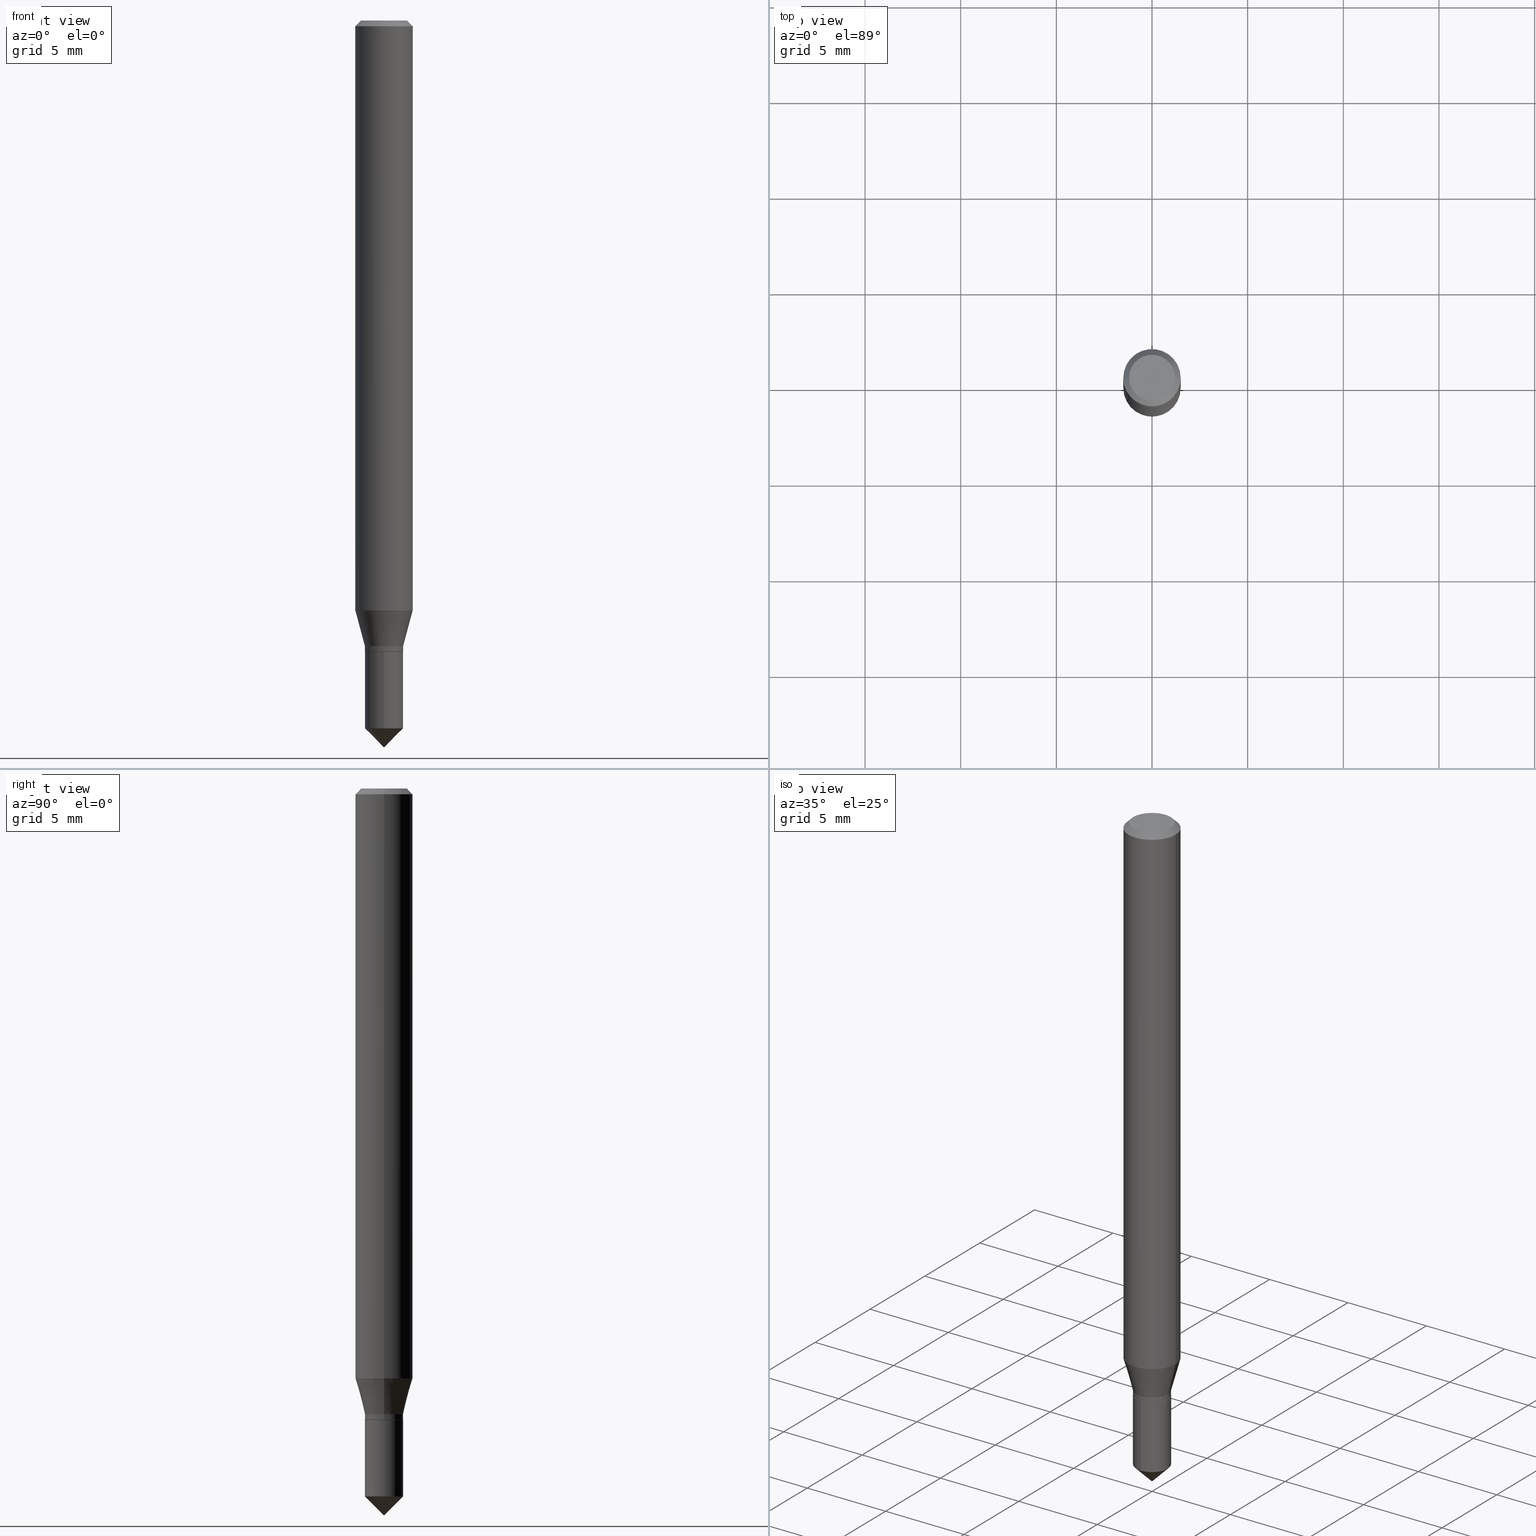
[diagram: canonical four-view strip — front | top / right | iso, engineering-drawing reading convention]
A machine part, canonical four-view strip (front | top / right | iso — engineering-drawing reading convention). The complete STEP part file that produces these views, byte-faithful:
ISO-10303-21;
HEADER;
FILE_DESCRIPTION (( 'STEP AP203' ),
    '1' );
FILE_NAME ('07038.STEP',
    '2024-04-23T19:22:19',
    ( '' ),
    ( '' ),
    'SwSTEP 2.0',
    'SolidWorks 2023',
    '' );
FILE_SCHEMA (( 'CONFIG_CONTROL_DESIGN' ));
ENDSEC;

DATA;
#1 = DIRECTION ( 'NONE',  ( 1.000000000000000000, -6.982962677686256455E-15, 0.000000000000000000 ) ) ;
#2 = ORIENTED_EDGE ( 'NONE', *, *, #373, .T. ) ;
#3 = ORIENTED_EDGE ( 'NONE', *, *, #354, .T. ) ;
#4 = DIRECTION ( 'NONE',  ( -0.2588190451025212391, 5.211531920934549464E-15, 0.9659258262890679791 ) ) ;
#5 = CIRCLE ( 'NONE', #279, 0.04724000000000000421 ) ;
#6 = FACE_OUTER_BOUND ( 'NONE', #302, .T. ) ;
#7 = ORIENTED_EDGE ( 'NONE', *, *, #117, .T. ) ;
#8 = FACE_OUTER_BOUND ( 'NONE', #393, .T. ) ;
#9 = LINE ( 'NONE', #272, #278 ) ;
#10 = DIRECTION ( 'NONE',  ( 1.000000000000000000, -6.982962677686266711E-15, 0.000000000000000000 ) ) ;
#11 = VECTOR ( 'NONE', #362, 39.37007874015748143 ) ;
#12 = COORDINATED_UNIVERSAL_TIME_OFFSET ( 5, 0, .BEHIND. ) ;
#13 = DIRECTION ( 'NONE',  ( -4.937700262164549620E-15, -0.7071067811865453523, 0.7071067811865496822 ) ) ;
#14 = APPROVAL ( #27, 'UNSPECIFIED' ) ;
#15 = ADVANCED_FACE ( 'NONE', ( #365 ), #463, .T. ) ;
#16 = PERSON_AND_ORGANIZATION ( #370, #138 ) ;
#17 = DIRECTION ( 'NONE',  ( -2.445468806185136597E-29, 3.491481338843145583E-15, 1.000000000000000000 ) ) ;
#18 = CARTESIAN_POINT ( 'NONE',  ( 0.000000000000000000, 0.000000000000000000, 0.000000000000000000 ) ) ;
#19 = DIRECTION ( 'NONE',  ( -2.438088387897960049E-29, 3.491481338843145188E-15, 1.000000000000000000 ) ) ;
#20 = FACE_OUTER_BOUND ( 'NONE', #405, .T. ) ;
#21 =( NAMED_UNIT ( * ) PLANE_ANGLE_UNIT ( ) SI_UNIT ( $, .RADIAN. ) );
#22 = DIRECTION ( 'NONE',  ( 1.000000000000000000, -6.982962677686266711E-15, 4.876176775795936353E-29 ) ) ;
#23 = DIRECTION ( 'NONE',  ( -0.7071067811865454633, 2.468850131082235761E-15, -0.7071067811865493491 ) ) ;
#24 = DATE_AND_TIME ( #256, #235 ) ;
#25 = CARTESIAN_POINT ( 'NONE',  ( 3.148296541082745256E-29, -4.494933075626666460E-15, -1.287400000000000100 ) ) ;
#26 = ORIENTED_EDGE ( 'NONE', *, *, #368, .T. ) ;
#27 = APPROVAL_STATUS ( 'not_yet_approved' ) ;
#28 = LINE ( 'NONE', #331, #400 ) ;
#29 = DIRECTION ( 'NONE',  ( 1.000000000000000000, -6.982962677686271444E-15, 0.000000000000000000 ) ) ;
#30 = CIRCLE ( 'NONE', #345, 0.03935000000000000303 ) ;
#31 = CIRCLE ( 'NONE', #265, 0.05905000000000015098 ) ;
#32 = CALENDAR_DATE ( 2024, 23, 4 ) ;
#33 = ORIENTED_EDGE ( 'NONE', *, *, #58, .F. ) ;
#34 = DIRECTION ( 'NONE',  ( 0.7071067811868192443, -2.468850131085102876E-15, 0.7071067811862759012 ) ) ;
#35 = EDGE_CURVE ( 'NONE', #381, #454, #289, .T. ) ;
#36 = EDGE_CURVE ( 'NONE', #44, #371, #191, .T. ) ;
#37 = DIRECTION ( 'NONE',  ( -2.445468806185136597E-29, 3.491481338843145583E-15, 1.000000000000000000 ) ) ;
#38 = VERTEX_POINT ( 'NONE', #109 ) ;
#39 = EDGE_CURVE ( 'NONE', #424, #83, #328, .T. ) ;
#40 = AXIS2_PLACEMENT_3D ( 'NONE', #277, #61, #353 ) ;
#41 = EDGE_LOOP ( 'NONE', ( #33, #81, #414, #459 ) ) ;
#42 = DIRECTION ( 'NONE',  ( 1.000000000000000000, -6.982962677686271444E-15, 0.000000000000000000 ) ) ;
#43 = CARTESIAN_POINT ( 'NONE',  ( 3.177153072995728197E-29, -4.536132555425013945E-15, -1.299199999999999688 ) ) ;
#44 = VERTEX_POINT ( 'NONE', #72 ) ;
#45 = CARTESIAN_POINT ( 'NONE',  ( -0.05905000000000007465, 4.195754854663396902E-16, -2.904631170795525395E-30 ) ) ;
#46 = PLANE ( 'NONE',  #325 ) ;
#47 = ORIENTED_EDGE ( 'NONE', *, *, #330, .T. ) ;
#48 = FACE_OUTER_BOUND ( 'NONE', #409, .T. ) ;
#49 = CC_DESIGN_APPROVAL ( #106, ( #387 ) ) ;
#50 = CARTESIAN_POINT ( 'NONE',  ( 3.177153072995728757E-29, -4.536132555425014733E-15, -1.299199999999999910 ) ) ;
#51 = ORIENTED_EDGE ( 'NONE', *, *, #426, .T. ) ;
#52 = CARTESIAN_POINT ( 'NONE',  ( 3.148296541082745256E-29, -4.494933075626666460E-15, -1.287400000000000100 ) ) ;
#53 = MECHANICAL_CONTEXT ( 'NONE', #74, 'mechanical' ) ;
#54 = CC_DESIGN_PERSON_AND_ORGANIZATION_ASSIGNMENT ( #16, #448, ( #148 ) ) ;
#55 = AXIS2_PLACEMENT_3D ( 'NONE', #389, #269, #427 ) ;
#56 = DIRECTION ( 'NONE',  ( -2.445468806185136597E-29, 3.491481338843145583E-15, 1.000000000000000000 ) ) ;
#57 = CIRCLE ( 'NONE', #471, 0.03935000000000000303 ) ;
#58 = EDGE_CURVE ( 'NONE', #196, #424, #286, .T. ) ;
#59 = PRODUCT ( '07038', '07038', '', ( #53 ) ) ;
#60 = DATE_AND_TIME ( #470, #333 ) ;
#61 = DIRECTION ( 'NONE',  ( -2.445468806185136597E-29, 3.491481338843145583E-15, 1.000000000000000000 ) ) ;
#62 = EDGE_CURVE ( 'NONE', #196, #79, #411, .T. ) ;
#63 = CARTESIAN_POINT ( 'NONE',  ( 9.556573727066734222E-29, 4.599560915279260677E-15, -1.299199999999999688 ) ) ;
#64 = CIRCLE ( 'NONE', #100, 0.03885000000000000259 ) ;
#65 = CARTESIAN_POINT ( 'NONE',  ( -0.03885000000000000259, -4.260086702582214659E-15, -1.299199999999999688 ) ) ;
#66 = EDGE_CURVE ( 'NONE', #159, #82, #356, .T. ) ;
#67 = DIRECTION ( 'NONE',  ( -2.456664372604500601E-29, 3.475448650518548198E-15, 1.000000000000000000 ) ) ;
#68 = ORIENTED_EDGE ( 'NONE', *, *, #150, .F. ) ;
#69 = APPROVAL_ROLE ( '' ) ;
#70 = DIRECTION ( 'NONE',  ( 1.000000000000000000, -6.982962677686269077E-15, 0.000000000000000000 ) ) ;
#71 = ADVANCED_FACE ( 'NONE', ( #402 ), #419, .T. ) ;
#72 = CARTESIAN_POINT ( 'NONE',  ( 0.05905000000000015098, -4.650578422464288085E-15, -1.213878599090892685 ) ) ;
#73 = APPROVAL_DATE_TIME ( #479, #106 ) ;
#74 = APPLICATION_CONTEXT ( 'configuration controlled 3d designs of mechanical parts and assemblies' ) ;
#75 = ADVANCED_FACE ( 'NONE', ( #20 ), #399, .T. ) ;
#76 = DIRECTION ( 'NONE',  ( -2.445468806185136597E-29, 3.491481338843145583E-15, 1.000000000000000000 ) ) ;
#77 = FACE_OUTER_BOUND ( 'NONE', #317, .T. ) ;
#78 = VECTOR ( 'NONE', #438, 39.37007874015748143 ) ;
#79 = VERTEX_POINT ( 'NONE', #218 ) ;
#80 = CC_DESIGN_APPROVAL ( #14, ( #401 ) ) ;
#81 = ORIENTED_EDGE ( 'NONE', *, *, #62, .T. ) ;
#82 = VERTEX_POINT ( 'NONE', #323 ) ;
#83 = VERTEX_POINT ( 'NONE', #481 ) ;
#84 = CARTESIAN_POINT ( 'NONE',  ( 0.05904999999999999832, -4.463468013801466955E-16, -0.01181000000000006350 ) ) ;
#85 = ORIENTED_EDGE ( 'NONE', *, *, #214, .T. ) ;
#86 = ORIENTED_EDGE ( 'NONE', *, *, #473, .F. ) ;
#87 = PLANE ( 'NONE',  #113 ) ;
#88 = VERTEX_POINT ( 'NONE', #444 ) ;
#89 = AXIS2_PLACEMENT_3D ( 'NONE', #133, #276, #303 ) ;
#90 = CARTESIAN_POINT ( 'NONE',  ( 0.05905000000000007465, -4.123439461173745750E-16, 2.879382386107504074E-30 ) ) ;
#91 = EDGE_CURVE ( 'NONE', #454, #88, #482, .T. ) ;
#92 = CYLINDRICAL_SURFACE ( 'NONE', #112, 0.05905000000000007465 ) ;
#93 = AXIS2_PLACEMENT_3D ( 'NONE', #238, #429, #467 ) ;
#94 = PLANE ( 'NONE',  #308 ) ;
#95 = ORIENTED_EDGE ( 'NONE', *, *, #134, .F. ) ;
#96 = DIRECTION ( 'NONE',  ( -2.456664372604500601E-29, 3.475448650518548198E-15, 1.000000000000000000 ) ) ;
#97 = DIRECTION ( 'NONE',  ( -2.445468806185136877E-29, 3.491481338843145188E-15, 1.000000000000000000 ) ) ;
#98 = CARTESIAN_POINT ( 'NONE',  ( -2.747795813669188758E-16, -0.03935000000000507536, -1.456749999999999767 ) ) ;
#99 = VECTOR ( 'NONE', #255, 39.37007874015748143 ) ;
#100 = AXIS2_PLACEMENT_3D ( 'NONE', #153, #446, #408 ) ;
#101 = DIRECTION ( 'NONE',  ( 1.000000000000000000, -6.982962677686256455E-15, 0.000000000000000000 ) ) ;
#102 = CLOSED_SHELL ( 'NONE', ( #202, #388, #15, #193, #178 ) ) ;
#103 = PERSON_AND_ORGANIZATION ( #370, #138 ) ;
#104 = ORIENTED_EDGE ( 'NONE', *, *, #91, .T. ) ;
#105 = COORDINATED_UNIVERSAL_TIME_OFFSET ( 5, 0, .BEHIND. ) ;
#106 = APPROVAL ( #324, 'UNSPECIFIED' ) ;
#107 = CARTESIAN_POINT ( 'NONE',  ( -9.305819949961722198E-28, 1.316082386335771911E-13, 37.87397874015748300 ) ) ;
#108 = ADVANCED_FACE ( 'NONE', ( #127 ), #92, .T. ) ;
#109 = CARTESIAN_POINT ( 'NONE',  ( 3.675415567853592762E-29, -5.199618726040799515E-15, -1.496099999999999985 ) ) ;
#110 = PERSON_AND_ORGANIZATION ( #370, #138 ) ;
#111 = CARTESIAN_POINT ( 'NONE',  ( 2.888098660104662014E-31, -4.123439461173777182E-17, -0.01181000000000006350 ) ) ;
#112 = AXIS2_PLACEMENT_3D ( 'NONE', #344, #237, #390 ) ;
#113 = AXIS2_PLACEMENT_3D ( 'NONE', #304, #462, #179 ) ;
#114 = CARTESIAN_POINT ( 'NONE',  ( 2.968502248572491582E-29, -4.238234476346912376E-15, -1.213878599090892685 ) ) ;
#115 = VERTEX_POINT ( 'NONE', #131 ) ;
#116 = DIRECTION ( 'NONE',  ( -2.445468806185136597E-29, 3.491481338843145583E-15, 1.000000000000000000 ) ) ;
#117 = EDGE_CURVE ( 'NONE', #82, #169, #222, .T. ) ;
#118 = EDGE_LOOP ( 'NONE', ( #397, #334, #384, #68 ) ) ;
#119 = EDGE_LOOP ( 'NONE', ( #283, #263, #151, #123 ) ) ;
#120 = CARTESIAN_POINT ( 'NONE',  ( -0.03935000000000000303, 2.795985665215994447E-16, -1.935600958015305291E-30 ) ) ;
#121 = ADVANCED_FACE ( 'NONE', ( #8 ), #185, .T. ) ;
#122 = LINE ( 'NONE', #84, #170 ) ;
#123 = ORIENTED_EDGE ( 'NONE', *, *, #483, .F. ) ;
#124 = CC_DESIGN_PERSON_AND_ORGANIZATION_ASSIGNMENT ( #329, #220, ( #401 ) ) ;
#125 = DIRECTION ( 'NONE',  ( 1.000000000000000000, -6.982962677686269077E-15, 0.000000000000000000 ) ) ;
#126 = ORIENTED_EDGE ( 'NONE', *, *, #36, .T. ) ;
#127 = FACE_OUTER_BOUND ( 'NONE', #215, .T. ) ;
#128 = CLOSED_SHELL ( 'NONE', ( #460, #466, #108, #310, #294, #75, #121, #287, #456, #261, #282, #71 ) ) ;
#129 = EDGE_LOOP ( 'NONE', ( #243, #165, #377 ) ) ;
#130 = CC_DESIGN_APPROVAL ( #198, ( #148 ) ) ;
#131 = CARTESIAN_POINT ( 'NONE',  ( 0.03935000000000000303, -4.769712656993620588E-15, -1.287400000000000100 ) ) ;
#132 = CC_DESIGN_PERSON_AND_ORGANIZATION_ASSIGNMENT ( #110, #403, ( #387 ) ) ;
#133 = CARTESIAN_POINT ( 'NONE',  ( 3.175930338592637077E-29, -4.534386814755593230E-15, -1.298699999999999966 ) ) ;
#134 = EDGE_CURVE ( 'NONE', #44, #169, #234, .T. ) ;
#135 = ORIENTED_EDGE ( 'NONE', *, *, #66, .F. ) ;
#136 = APPROVAL_ROLE ( '' ) ;
#137 = DIRECTION ( 'NONE',  ( -6.982962677686266711E-15, -1.000000000000000000, 6.942434545525446301E-15 ) ) ;
#138 = ORGANIZATION ( 'UNSPECIFIED', 'UNSPECIFIED', '' ) ;
#139 = ORIENTED_EDGE ( 'NONE', *, *, #299, .F. ) ;
#140 = FACE_OUTER_BOUND ( 'NONE', #268, .T. ) ;
#141 = DIRECTION ( 'NONE',  ( -6.982962677686266711E-15, -1.000000000000000000, 3.552713678800497774E-15 ) ) ;
#142 = CARTESIAN_POINT ( 'NONE',  ( 3.675670657724248735E-29, -5.199618726040799515E-15, -1.496099999999999985 ) ) ;
#143 = EDGE_CURVE ( 'NONE', #424, #228, #239, .T. ) ;
#144 = CARTESIAN_POINT ( 'NONE',  ( -0.05904999999999999832, 3.711095515056362547E-16, -0.01181000000000006350 ) ) ;
#145 = CALENDAR_DATE ( 2024, 23, 4 ) ;
#146 = AXIS2_PLACEMENT_3D ( 'NONE', #194, #319, #141 ) ;
#147 = CONICAL_SURFACE ( 'NONE', #186, 0.03885000000000000259, 0.7853981633978325272 ) ;
#148 = PRODUCT_DEFINITION ( 'UNKNOWN', '', #387, #355 ) ;
#149 = ORIENTED_EDGE ( 'NONE', *, *, #266, .T. ) ;
#150 = EDGE_CURVE ( 'NONE', #115, #44, #9, .T. ) ;
#151 = ORIENTED_EDGE ( 'NONE', *, *, #330, .F. ) ;
#152 = APPROVAL_ROLE ( '' ) ;
#153 = CARTESIAN_POINT ( 'NONE',  ( 3.177153072995728197E-29, -4.536132555425013945E-15, -1.299199999999999688 ) ) ;
#154 = DIRECTION ( 'NONE',  ( -2.456664372604500881E-29, 3.475448650518548198E-15, 1.000000000000000000 ) ) ;
#155 = AXIS2_PLACEMENT_3D ( 'NONE', #451, #116, #70 ) ;
#156 = ORIENTED_EDGE ( 'NONE', *, *, #490, .T. ) ;
#157 = EDGE_LOOP ( 'NONE', ( #236, #51, #416, #418 ) ) ;
#158 = DIRECTION ( 'NONE',  ( -2.445468806185136597E-29, 3.491481338843145583E-15, 1.000000000000000000 ) ) ;
#159 = VERTEX_POINT ( 'NONE', #267 ) ;
#160 = DIRECTION ( 'NONE',  ( -2.445468806185136597E-29, 3.491481338843145583E-15, 1.000000000000000000 ) ) ;
#161 = EDGE_CURVE ( 'NONE', #83, #371, #207, .T. ) ;
#162 = AXIS2_PLACEMENT_3D ( 'NONE', #257, #67, #364 ) ;
#163 = ORIENTED_EDGE ( 'NONE', *, *, #368, .F. ) ;
#164 = CARTESIAN_POINT ( 'NONE',  ( -0.03885000000000000259, -4.257437475408104247E-15, -1.299199999999999688 ) ) ;
#165 = ORIENTED_EDGE ( 'NONE', *, *, #296, .T. ) ;
#166 = EDGE_CURVE ( 'NONE', #115, #83, #30, .T. ) ;
#167 = DIRECTION ( 'NONE',  ( -2.456664372604500601E-29, 3.475448650518548198E-15, 1.000000000000000000 ) ) ;
#168 = CARTESIAN_POINT ( 'NONE',  ( 0.05904999999999999832, -4.535783407291118600E-16, -0.01181000000000006350 ) ) ;
#169 = VERTEX_POINT ( 'NONE', #168 ) ;
#170 = VECTOR ( 'NONE', #232, 39.37007874015748854 ) ;
#171 = DIRECTION ( 'NONE',  ( 2.456664372604500321E-29, -3.475448650518548198E-15, -1.000000000000000000 ) ) ;
#172 = VECTOR ( 'NONE', #4, 39.37007874015748854 ) ;
#173 = DIRECTION ( 'NONE',  ( 1.000000000000000000, -6.982962677686265922E-15, 4.876176775795935793E-29 ) ) ;
#174 =( GEOMETRIC_REPRESENTATION_CONTEXT ( 3 ) GLOBAL_UNCERTAINTY_ASSIGNED_CONTEXT ( ( #270 ) ) GLOBAL_UNIT_ASSIGNED_CONTEXT ( ( #435, #21, #398 ) ) REPRESENTATION_CONTEXT ( 'NONE', 'WORKASPACE' ) );
#175 = CARTESIAN_POINT ( 'NONE',  ( 0.000000000000000000, 0.000000000000000000, 0.000000000000000000 ) ) ;
#176 = AXIS2_PLACEMENT_3D ( 'NONE', #175, #56, #315 ) ;
#177 = CARTESIAN_POINT ( 'NONE',  ( 2.968502248572491582E-29, -4.238234476346912376E-15, -1.213878599090892685 ) ) ;
#178 = ADVANCED_FACE ( 'NONE', ( #48 ), #46, .F. ) ;
#179 = DIRECTION ( 'NONE',  ( -1.000000000000000000, 6.982962677686265922E-15, -4.876176775795935793E-29 ) ) ;
#180 = CARTESIAN_POINT ( 'NONE',  ( 0.000000000000000000, 0.000000000000000000, 0.000000000000000000 ) ) ;
#181 = ORIENTED_EDGE ( 'NONE', *, *, #35, .F. ) ;
#182 = DATE_AND_TIME ( #253, #314 ) ;
#183 = ORIENTED_EDGE ( 'NONE', *, *, #62, .F. ) ;
#184 =( LENGTH_UNIT ( ) NAMED_UNIT ( * ) SI_UNIT ( $, .METRE. ) );
#185 = CONICAL_SURFACE ( 'NONE', #349, 0.03935000000000000303, 0.2617993877991499629 ) ;
#186 = AXIS2_PLACEMENT_3D ( 'NONE', #443, #37, #367 ) ;
#187 = SECURITY_CLASSIFICATION_LEVEL ( 'unclassified' ) ;
#188 = CARTESIAN_POINT ( 'NONE',  ( 0.03885000000000000259, -4.807420655453125065E-15, -1.299199999999999688 ) ) ;
#189 = DIRECTION ( 'NONE',  ( -1.000000000000000000, 6.982962677686266711E-15, 0.000000000000000000 ) ) ;
#190 = LINE ( 'NONE', #188, #227 ) ;
#191 = CIRCLE ( 'NONE', #307, 0.05905000000000015098 ) ;
#192 = CIRCLE ( 'NONE', #89, 0.03935000000000000997 ) ;
#193 = ADVANCED_FACE ( 'NONE', ( #6 ), #204, .T. ) ;
#194 = CARTESIAN_POINT ( 'NONE',  ( -9.305819949961722198E-28, 1.316082386335771911E-13, 37.87397874015748300 ) ) ;
#195 = ORIENTED_EDGE ( 'NONE', *, *, #166, .F. ) ;
#196 = VERTEX_POINT ( 'NONE', #164 ) ;
#197 = DIRECTION ( 'NONE',  ( -6.982962677686266711E-15, -1.000000000000000000, 6.942434545525446301E-15 ) ) ;
#198 = APPROVAL ( #432, 'UNSPECIFIED' ) ;
#199 = ORIENTED_EDGE ( 'NONE', *, *, #341, .T. ) ;
#200 = DIRECTION ( 'NONE',  ( 6.982962677686265922E-15, 1.000000000000000000, -3.475448650518548198E-15 ) ) ;
#201 = AXIS2_PLACEMENT_3D ( 'NONE', #180, #478, #439 ) ;
#202 = ADVANCED_FACE ( 'NONE', ( #206 ), #347, .T. ) ;
#203 = CONICAL_SURFACE ( 'NONE', #301, 0.05904999999999999832, 0.7853981633974456145 ) ;
#204 = CYLINDRICAL_SURFACE ( 'NONE', #376, 0.03935000000000000303 ) ;
#205 = CC_DESIGN_DATE_AND_TIME_ASSIGNMENT ( #182, #249, ( #148 ) ) ;
#206 = FACE_OUTER_BOUND ( 'NONE', #119, .T. ) ;
#207 = LINE ( 'NONE', #275, #172 ) ;
#208 = AXIS2_PLACEMENT_3D ( 'NONE', #487, #244, #101 ) ;
#209 = AXIS2_PLACEMENT_3D ( 'NONE', #480, #351, #226 ) ;
#210 = CARTESIAN_POINT ( 'NONE',  ( 3.177153072995728757E-29, -4.536132555425014733E-15, -1.299199999999999910 ) ) ;
#211 = CARTESIAN_POINT ( 'NONE',  ( 0.000000000000000000, 0.000000000000000000, 0.000000000000000000 ) ) ;
#212 = CC_DESIGN_PERSON_AND_ORGANIZATION_ASSIGNMENT ( #407, #284, ( #387 ) ) ;
#213 = PRODUCT_DEFINITION_SHAPE ( 'NONE', 'NONE',  #148 ) ;
#214 = EDGE_CURVE ( 'NONE', #228, #424, #192, .T. ) ;
#215 = EDGE_LOOP ( 'NONE', ( #126, #335, #139, #95 ) ) ;
#216 = AXIS2_PLACEMENT_3D ( 'NONE', #210, #96, #137 ) ;
#217 = FACE_OUTER_BOUND ( 'NONE', #252, .T. ) ;
#218 = CARTESIAN_POINT ( 'NONE',  ( 0.03885000000000000259, -4.807420655453125065E-15, -1.299199999999999688 ) ) ;
#219 = EDGE_LOOP ( 'NONE', ( #3, #156 ) ) ;
#220 = PERSON_AND_ORGANIZATION_ROLE ( 'classification_officer' ) ;
#221 = FACE_OUTER_BOUND ( 'NONE', #406, .T. ) ;
#222 = CIRCLE ( 'NONE', #440, 0.05904999999999999832 ) ;
#223 = AXIS2_PLACEMENT_3D ( 'NONE', #111, #404, #189 ) ;
#224 = FACE_OUTER_BOUND ( 'NONE', #342, .T. ) ;
#225 = DIRECTION ( 'NONE',  ( 1.000000000000000000, -6.982962677686266711E-15, 4.876185090822587894E-29 ) ) ;
#226 = DIRECTION ( 'NONE',  ( 1.000000000000000000, -6.982962677686266711E-15, 4.876185090822587894E-29 ) ) ;
#227 = VECTOR ( 'NONE', #34, 39.37007874015748143 ) ;
#228 = VERTEX_POINT ( 'NONE', #430 ) ;
#229 = CC_DESIGN_PERSON_AND_ORGANIZATION_ASSIGNMENT ( #311, #240, ( #59 ) ) ;
#230 = EDGE_CURVE ( 'NONE', #371, #82, #231, .T. ) ;
#231 = LINE ( 'NONE', #45, #392 ) ;
#232 = DIRECTION ( 'NONE',  ( 0.7071067811865454633, -7.319954787623246579E-15, -0.7071067811865493491 ) ) ;
#233 = ORIENTED_EDGE ( 'NONE', *, *, #58, .T. ) ;
#234 = LINE ( 'NONE', #90, #264 ) ;
#235 = LOCAL_TIME ( 15, 22, 19.00000000000000000, #291 ) ;
#236 = ORIENTED_EDGE ( 'NONE', *, *, #230, .F. ) ;
#237 = DIRECTION ( 'NONE',  ( -2.445468806185136597E-29, 3.491481338843145583E-15, 1.000000000000000000 ) ) ;
#238 = CARTESIAN_POINT ( 'NONE',  ( 3.177153072995728757E-29, -4.536132555425014733E-15, -1.299199999999999910 ) ) ;
#239 = CIRCLE ( 'NONE', #55, 0.03935000000000000997 ) ;
#240 = PERSON_AND_ORGANIZATION_ROLE ( 'design_owner' ) ;
#241 = CIRCLE ( 'NONE', #216, 0.03935000000000000303 ) ;
#242 = DIRECTION ( 'NONE',  ( -2.445468806185136877E-29, 3.491481338843145188E-15, 1.000000000000000000 ) ) ;
#243 = ORIENTED_EDGE ( 'NONE', *, *, #266, .F. ) ;
#244 = DIRECTION ( 'NONE',  ( -2.445468806185136597E-29, 3.491481338843145583E-15, 1.000000000000000000 ) ) ;
#245 = AXIS2_PLACEMENT_3D ( 'NONE', #380, #306, #197 ) ;
#246 = CIRCLE ( 'NONE', #209, 0.04724000000000000421 ) ;
#247 = LINE ( 'NONE', #285, #326 ) ;
#248 = ORIENTED_EDGE ( 'NONE', *, *, #299, .T. ) ;
#249 = DATE_TIME_ROLE ( 'creation_date' ) ;
#250 = EDGE_CURVE ( 'NONE', #305, #169, #122, .T. ) ;
#251 = DIRECTION ( 'NONE',  ( -2.445468806185136597E-29, 3.491481338843145583E-15, 1.000000000000000000 ) ) ;
#252 = EDGE_LOOP ( 'NONE', ( #85, #320, #195, #338 ) ) ;
#253 = CALENDAR_DATE ( 2024, 23, 4 ) ;
#254 = DIRECTION ( 'NONE',  ( -6.982962677686266711E-15, -1.000000000000000000, 3.552713678800497774E-15 ) ) ;
#255 = DIRECTION ( 'NONE',  ( -0.7071067811868192443, 7.493145998871337081E-15, 0.7071067811862759012 ) ) ;
#256 = CALENDAR_DATE ( 2024, 23, 4 ) ;
#257 = CARTESIAN_POINT ( 'NONE',  ( 3.564200544899568706E-29, -5.083689490314212442E-15, -1.456749999999999989 ) ) ;
#258 = VECTOR ( 'NONE', #97, 39.37007874015748143 ) ;
#259 = ORIENTED_EDGE ( 'NONE', *, *, #250, .F. ) ;
#260 = FACE_OUTER_BOUND ( 'NONE', #129, .T. ) ;
#261 = ADVANCED_FACE ( 'NONE', ( #425 ), #87, .F. ) ;
#262 = CARTESIAN_POINT ( 'NONE',  ( 2.795985665216350420E-16, 0.03934999999999547193, -1.299200000000000133 ) ) ;
#263 = ORIENTED_EDGE ( 'NONE', *, *, #35, .T. ) ;
#264 = VECTOR ( 'NONE', #340, 39.37007874015748143 ) ;
#265 = AXIS2_PLACEMENT_3D ( 'NONE', #114, #158, #42 ) ;
#266 = EDGE_CURVE ( 'NONE', #38, #346, #247, .T. ) ;
#267 = CARTESIAN_POINT ( 'NONE',  ( -0.04724000000000000421, 3.504923541997677355E-16, -3.380025165670481712E-19 ) ) ;
#268 = EDGE_LOOP ( 'NONE', ( #163, #183 ) ) ;
#269 = DIRECTION ( 'NONE',  ( -2.445468806185136597E-29, 3.491481338843145583E-15, 1.000000000000000000 ) ) ;
#270 = UNCERTAINTY_MEASURE_WITH_UNIT (LENGTH_MEASURE( 1.000000000000000082E-05 ), #435, 'distance_accuracy_value', 'NONE');
#271 = ORIENTED_EDGE ( 'NONE', *, *, #426, .F. ) ;
#272 = CARTESIAN_POINT ( 'NONE',  ( 0.03935000000000000303, -4.769712656993620588E-15, -1.287400000000000100 ) ) ;
#273 = CIRCLE ( 'NONE', #162, 0.03935000000000000303 ) ;
#274 = ORIENTED_EDGE ( 'NONE', *, *, #150, .T. ) ;
#275 = CARTESIAN_POINT ( 'NONE',  ( -0.03935000000000000303, -4.215334509105066276E-15, -1.287400000000000100 ) ) ;
#276 = DIRECTION ( 'NONE',  ( -2.445468806185136597E-29, 3.491481338843145583E-15, 1.000000000000000000 ) ) ;
#277 = CARTESIAN_POINT ( 'NONE',  ( 2.888098660104662014E-31, -4.123439461173777182E-17, -0.01181000000000006350 ) ) ;
#278 = VECTOR ( 'NONE', #382, 39.37007874015748854 ) ;
#279 = AXIS2_PLACEMENT_3D ( 'NONE', #489, #76, #225 ) ;
#280 = CARTESIAN_POINT ( 'NONE',  ( 0.03935000000000000303, -2.747795813669546211E-16, 1.918775561275701074E-30 ) ) ;
#281 = LINE ( 'NONE', #142, #11 ) ;
#282 = ADVANCED_FACE ( 'NONE', ( #140 ), #94, .F. ) ;
#283 = ORIENTED_EDGE ( 'NONE', *, *, #379, .T. ) ;
#284 = PERSON_AND_ORGANIZATION_ROLE ( 'creator' ) ;
#285 = CARTESIAN_POINT ( 'NONE',  ( 3.646325008069517362E-29, -5.241278063383433293E-15, -1.496099999999999985 ) ) ;
#286 = LINE ( 'NONE', #65, #99 ) ;
#287 = ADVANCED_FACE ( 'NONE', ( #359 ), #318, .T. ) ;
#288 = LENGTH_MEASURE_WITH_UNIT ( LENGTH_MEASURE( 0.02539999999999999897 ), #184 );
#289 = LINE ( 'NONE', #474, #78 ) ;
#290 = ORIENTED_EDGE ( 'NONE', *, *, #214, .F. ) ;
#291 = COORDINATED_UNIVERSAL_TIME_OFFSET ( 5, 0, .BEHIND. ) ;
#292 = DIRECTION ( 'NONE',  ( -2.456664372604500601E-29, 3.475448650518548198E-15, 1.000000000000000000 ) ) ;
#293 = LOCAL_TIME ( 15, 22, 19.00000000000000000, #485 ) ;
#294 = ADVANCED_FACE ( 'NONE', ( #217 ), #477, .T. ) ;
#295 = CARTESIAN_POINT ( 'NONE',  ( -0.05905000000000015098, -3.818658990880572095E-15, -1.213878599090892685 ) ) ;
#296 = EDGE_CURVE ( 'NONE', #38, #381, #281, .T. ) ;
#297 = ORIENTED_EDGE ( 'NONE', *, *, #296, .F. ) ;
#298 = ORIENTED_EDGE ( 'NONE', *, *, #161, .F. ) ;
#299 = EDGE_CURVE ( 'NONE', #169, #82, #428, .T. ) ;
#300 = DIRECTION ( 'NONE',  ( -6.982962677686266711E-15, -1.000000000000000000, 6.942434545525446301E-15 ) ) ;
#301 = AXIS2_PLACEMENT_3D ( 'NONE', #417, #372, #415 ) ;
#302 = EDGE_LOOP ( 'NONE', ( #181, #363, #343, #431 ) ) ;
#303 = DIRECTION ( 'NONE',  ( 1.000000000000000000, -6.982962677686268288E-15, 0.000000000000000000 ) ) ;
#304 = CARTESIAN_POINT ( 'NONE',  ( 4.132873053354867254E-48, -5.900647395337818946E-34, -1.690012582823346072E-19 ) ) ;
#305 = VERTEX_POINT ( 'NONE', #312 ) ;
#306 = DIRECTION ( 'NONE',  ( -2.456664372604500601E-29, 3.475448650518548198E-15, 1.000000000000000000 ) ) ;
#307 = AXIS2_PLACEMENT_3D ( 'NONE', #177, #251, #29 ) ;
#308 = AXIS2_PLACEMENT_3D ( 'NONE', #63, #19, #173 ) ;
#309 = CARTESIAN_POINT ( 'NONE',  ( 2.888098660104662014E-31, -4.123439461173777182E-17, -0.01181000000000006350 ) ) ;
#310 = ADVANCED_FACE ( 'NONE', ( #436 ), #457, .T. ) ;
#311 = PERSON_AND_ORGANIZATION ( #370, #138 ) ;
#312 = CARTESIAN_POINT ( 'NONE',  ( 0.04724000000000000421, -3.852183633974369345E-16, -3.380025165621689721E-19 ) ) ;
#313 = DIRECTION ( 'NONE',  ( 1.000000000000000000, 0.000000000000000000, 0.000000000000000000 ) ) ;
#314 = LOCAL_TIME ( 15, 22, 19.00000000000000000, #105 ) ;
#315 = DIRECTION ( 'NONE',  ( 1.000000000000000000, -6.982962677686266711E-15, 4.876176775795936353E-29 ) ) ;
#316 = ORIENTED_EDGE ( 'NONE', *, *, #490, .F. ) ;
#317 = EDGE_LOOP ( 'NONE', ( #316, #339, #248, #135 ) ) ;
#318 = CYLINDRICAL_SURFACE ( 'NONE', #420, 0.05905000000000007465 ) ;
#319 = DIRECTION ( 'NONE',  ( -2.456664372604500601E-29, 3.475448650518548198E-15, 1.000000000000000000 ) ) ;
#320 = ORIENTED_EDGE ( 'NONE', *, *, #39, .T. ) ;
#321 = SHAPE_DEFINITION_REPRESENTATION ( #213, #361 ) ;
#322 = DIRECTION ( 'NONE',  ( 1.000000000000000000, -6.982962677686269077E-15, 0.000000000000000000 ) ) ;
#323 = CARTESIAN_POINT ( 'NONE',  ( -0.05904999999999999832, -1.720158950012984376E-15, -0.01181000000000006350 ) ) ;
#324 = APPROVAL_STATUS ( 'not_yet_approved' ) ;
#325 = AXIS2_PLACEMENT_3D ( 'NONE', #464, #171, #200 ) ;
#326 = VECTOR ( 'NONE', #13, 39.37007874015748143 ) ;
#327 = LOCAL_TIME ( 15, 22, 19.00000000000000000, #366 ) ;
#328 = LINE ( 'NONE', #120, #258 ) ;
#329 = PERSON_AND_ORGANIZATION ( #370, #138 ) ;
#330 = EDGE_CURVE ( 'NONE', #88, #454, #241, .T. ) ;
#331 = CARTESIAN_POINT ( 'NONE',  ( -2.747795813669228201E-16, -0.03935000000000453413, -1.299199999999999688 ) ) ;
#332 = CARTESIAN_POINT ( 'NONE',  ( 3.564200544899568706E-29, -5.083689490314212442E-15, -1.456749999999999989 ) ) ;
#333 = LOCAL_TIME ( 15, 22, 19.00000000000000000, #12 ) ;
#334 = ORIENTED_EDGE ( 'NONE', *, *, #161, .T. ) ;
#335 = ORIENTED_EDGE ( 'NONE', *, *, #230, .T. ) ;
#336 = DIRECTION ( 'NONE',  ( -6.982962677686266711E-15, -1.000000000000000000, 6.942434545525446301E-15 ) ) ;
#337 = DIRECTION ( 'NONE',  ( -2.445468806185136597E-29, 3.491481338843145583E-15, 1.000000000000000000 ) ) ;
#338 = ORIENTED_EDGE ( 'NONE', *, *, #341, .F. ) ;
#339 = ORIENTED_EDGE ( 'NONE', *, *, #250, .T. ) ;
#340 = DIRECTION ( 'NONE',  ( -2.445468806185136877E-29, 3.491481338843145188E-15, 1.000000000000000000 ) ) ;
#341 = EDGE_CURVE ( 'NONE', #228, #115, #469, .T. ) ;
#342 = EDGE_LOOP ( 'NONE', ( #26, #233, #290, #378 ) ) ;
#343 = ORIENTED_EDGE ( 'NONE', *, *, #483, .T. ) ;
#344 = CARTESIAN_POINT ( 'NONE',  ( 0.000000000000000000, 0.000000000000000000, 0.000000000000000000 ) ) ;
#345 = AXIS2_PLACEMENT_3D ( 'NONE', #348, #423, #385 ) ;
#346 = VERTEX_POINT ( 'NONE', #98 ) ;
#347 = CYLINDRICAL_SURFACE ( 'NONE', #93, 0.03935000000000000303 ) ;
#348 = CARTESIAN_POINT ( 'NONE',  ( 3.148296541082745256E-29, -4.494933075626666460E-15, -1.287400000000000100 ) ) ;
#349 = AXIS2_PLACEMENT_3D ( 'NONE', #52, #461, #125 ) ;
#350 = AXIS2_PLACEMENT_3D ( 'NONE', #107, #292, #254 ) ;
#351 = DIRECTION ( 'NONE',  ( -2.445468806185136597E-29, 3.491481338843145583E-15, 1.000000000000000000 ) ) ;
#352 = APPROVAL_DATE_TIME ( #60, #198 ) ;
#353 = DIRECTION ( 'NONE',  ( 1.000000000000000000, -6.982962677686266711E-15, 0.000000000000000000 ) ) ;
#354 = EDGE_CURVE ( 'NONE', #159, #305, #246, .T. ) ;
#355 = DESIGN_CONTEXT ( 'detailed design', #374, 'design' ) ;
#356 = LINE ( 'NONE', #144, #433 ) ;
#357 = AXIS2_PLACEMENT_3D ( 'NONE', #25, #17, #322 ) ;
#358 = PERSON_AND_ORGANIZATION ( #370, #138 ) ;
#359 = FACE_OUTER_BOUND ( 'NONE', #157, .T. ) ;
#360 = EDGE_LOOP ( 'NONE', ( #297, #149, #86 ) ) ;
#361 = ADVANCED_BREP_SHAPE_REPRESENTATION ( '07038', ( #455, #449, #386 ), #174 ) ;
#362 = DIRECTION ( 'NONE',  ( 5.024295867788063967E-15, 0.7071067811865502373, 0.7071067811865447972 ) ) ;
#363 = ORIENTED_EDGE ( 'NONE', *, *, #473, .T. ) ;
#364 = DIRECTION ( 'NONE',  ( -6.982962677686266711E-15, -1.000000000000000000, 6.942434545525446301E-15 ) ) ;
#365 = FACE_OUTER_BOUND ( 'NONE', #360, .T. ) ;
#366 = COORDINATED_UNIVERSAL_TIME_OFFSET ( 5, 0, .BEHIND. ) ;
#367 = DIRECTION ( 'NONE',  ( 1.000000000000000000, -6.982962677686256455E-15, 0.000000000000000000 ) ) ;
#368 = EDGE_CURVE ( 'NONE', #79, #196, #64, .T. ) ;
#369 = CARTESIAN_POINT ( 'NONE',  ( 2.795985665216350420E-16, 0.03934999999999491682, -1.456750000000000211 ) ) ;
#370 = PERSON ( 'UNSPECIFIED', 'UNSPECIFIED', 'UNSPECIFIED', ('UNSPECIFIED'), ('UNSPECIFIED'), ('UNSPECIFIED') ) ;
#371 = VERTEX_POINT ( 'NONE', #295 ) ;
#372 = DIRECTION ( 'NONE',  ( 2.445468806185136597E-29, -3.491481338843145583E-15, -1.000000000000000000 ) ) ;
#373 = EDGE_CURVE ( 'NONE', #83, #115, #375, .T. ) ;
#374 = APPLICATION_CONTEXT ( 'configuration controlled 3d designs of mechanical parts and assemblies' ) ;
#375 = CIRCLE ( 'NONE', #155, 0.03935000000000000303 ) ;
#376 = AXIS2_PLACEMENT_3D ( 'NONE', #50, #167, #300 ) ;
#377 = ORIENTED_EDGE ( 'NONE', *, *, #379, .F. ) ;
#378 = ORIENTED_EDGE ( 'NONE', *, *, #437, .F. ) ;
#379 = EDGE_CURVE ( 'NONE', #346, #381, #57, .T. ) ;
#380 = CARTESIAN_POINT ( 'NONE',  ( 3.177153072995728757E-29, -4.536132555425014733E-15, -1.299199999999999910 ) ) ;
#381 = VERTEX_POINT ( 'NONE', #369 ) ;
#382 = DIRECTION ( 'NONE',  ( 0.2588190451025212391, 1.565188264969622362E-15, 0.9659258262890679791 ) ) ;
#383 = ORIENTED_EDGE ( 'NONE', *, *, #373, .F. ) ;
#384 = ORIENTED_EDGE ( 'NONE', *, *, #36, .F. ) ;
#385 = DIRECTION ( 'NONE',  ( 1.000000000000000000, -6.982962677686269077E-15, 0.000000000000000000 ) ) ;
#386 = AXIS2_PLACEMENT_3D ( 'NONE', #18, #394, #313 ) ;
#387 = PRODUCT_DEFINITION_FORMATION_WITH_SPECIFIED_SOURCE ( 'ANY', '', #59, .NOT_KNOWN. ) ;
#388 = ADVANCED_FACE ( 'NONE', ( #260 ), #484, .T. ) ;
#389 = CARTESIAN_POINT ( 'NONE',  ( 3.175930338592637077E-29, -4.534386814755593230E-15, -1.298699999999999966 ) ) ;
#390 = DIRECTION ( 'NONE',  ( 1.000000000000000000, -6.982962677686266711E-15, 4.876176775795936353E-29 ) ) ;
#391 = ORIENTED_EDGE ( 'NONE', *, *, #354, .F. ) ;
#392 = VECTOR ( 'NONE', #458, 39.37007874015748143 ) ;
#393 = EDGE_LOOP ( 'NONE', ( #298, #2, #274, #271 ) ) ;
#394 = DIRECTION ( 'NONE',  ( 0.000000000000000000, 0.000000000000000000, 1.000000000000000000 ) ) ;
#395 = DIRECTION ( 'NONE',  ( -2.445468806185136597E-29, 3.491481338843145583E-15, 1.000000000000000000 ) ) ;
#396 = CC_DESIGN_DATE_AND_TIME_ASSIGNMENT ( #441, #410, ( #401 ) ) ;
#397 = ORIENTED_EDGE ( 'NONE', *, *, #166, .T. ) ;
#398 =( NAMED_UNIT ( * ) SI_UNIT ( $, .STERADIAN. ) SOLID_ANGLE_UNIT ( ) );
#399 = CYLINDRICAL_SURFACE ( 'NONE', #201, 0.03935000000000000303 ) ;
#400 = VECTOR ( 'NONE', #154, 39.37007874015748143 ) ;
#401 = SECURITY_CLASSIFICATION ( '', '', #187 ) ;
#402 = FACE_OUTER_BOUND ( 'NONE', #41, .T. ) ;
#403 = PERSON_AND_ORGANIZATION_ROLE ( 'design_supplier' ) ;
#404 = DIRECTION ( 'NONE',  ( 2.445468806185136597E-29, -3.491481338843145583E-15, -1.000000000000000000 ) ) ;
#405 = EDGE_LOOP ( 'NONE', ( #447, #468, #199, #383 ) ) ;
#406 = EDGE_LOOP ( 'NONE', ( #259, #391, #453, #7 ) ) ;
#407 = PERSON_AND_ORGANIZATION ( #370, #138 ) ;
#408 = DIRECTION ( 'NONE',  ( 1.000000000000000000, -6.982962677686256455E-15, 0.000000000000000000 ) ) ;
#409 = EDGE_LOOP ( 'NONE', ( #47, #104 ) ) ;
#410 = DATE_TIME_ROLE ( 'classification_date' ) ;
#411 = CIRCLE ( 'NONE', #208, 0.03885000000000000259 ) ;
#412 = APPROVAL_PERSON_ORGANIZATION ( #358, #198, #136 ) ;
#413 = CARTESIAN_POINT ( 'NONE',  ( -0.03935000000000000997, -4.235061378669530450E-15, -1.298699999999999966 ) ) ;
#414 = ORIENTED_EDGE ( 'NONE', *, *, #437, .T. ) ;
#415 = DIRECTION ( 'NONE',  ( -1.000000000000000000, 6.982962677686266711E-15, 0.000000000000000000 ) ) ;
#416 = ORIENTED_EDGE ( 'NONE', *, *, #134, .T. ) ;
#417 = CARTESIAN_POINT ( 'NONE',  ( 2.888098660104662014E-31, -4.123439461173777182E-17, -0.01181000000000006350 ) ) ;
#418 = ORIENTED_EDGE ( 'NONE', *, *, #117, .F. ) ;
#419 = CONICAL_SURFACE ( 'NONE', #442, 0.03885000000000000259, 0.7853981633978325272 ) ;
#420 = AXIS2_PLACEMENT_3D ( 'NONE', #211, #395, #22 ) ;
#421 = CC_DESIGN_SECURITY_CLASSIFICATION ( #401, ( #387 ) ) ;
#422 = PRODUCT_RELATED_PRODUCT_CATEGORY ( 'detail', '', ( #59 ) ) ;
#423 = DIRECTION ( 'NONE',  ( -2.445468806185136597E-29, 3.491481338843145583E-15, 1.000000000000000000 ) ) ;
#424 = VERTEX_POINT ( 'NONE', #413 ) ;
#425 = FACE_OUTER_BOUND ( 'NONE', #219, .T. ) ;
#426 = EDGE_CURVE ( 'NONE', #371, #44, #31, .T. ) ;
#427 = DIRECTION ( 'NONE',  ( 1.000000000000000000, -6.982962677686268288E-15, 0.000000000000000000 ) ) ;
#428 = CIRCLE ( 'NONE', #40, 0.05904999999999999832 ) ;
#429 = DIRECTION ( 'NONE',  ( -2.456664372604500601E-29, 3.475448650518548198E-15, 1.000000000000000000 ) ) ;
#430 = CARTESIAN_POINT ( 'NONE',  ( 0.03935000000000000997, -4.809166396122548147E-15, -1.298699999999999966 ) ) ;
#431 = ORIENTED_EDGE ( 'NONE', *, *, #91, .F. ) ;
#432 = APPROVAL_STATUS ( 'not_yet_approved' ) ;
#433 = VECTOR ( 'NONE', #23, 39.37007874015748854 ) ;
#434 = CONICAL_SURFACE ( 'NONE', #223, 0.05904999999999999832, 0.7853981633974456145 ) ;
#435 =( CONVERSION_BASED_UNIT ( 'INCH', #288 ) LENGTH_UNIT ( ) NAMED_UNIT ( #475 ) );
#436 = FACE_OUTER_BOUND ( 'NONE', #118, .T. ) ;
#437 = EDGE_CURVE ( 'NONE', #79, #228, #190, .T. ) ;
#438 = DIRECTION ( 'NONE',  ( -2.456664372604500881E-29, 3.475448650518548198E-15, 1.000000000000000000 ) ) ;
#439 = DIRECTION ( 'NONE',  ( 1.000000000000000000, -6.982962677686266711E-15, 4.876176775795936353E-29 ) ) ;
#440 = AXIS2_PLACEMENT_3D ( 'NONE', #309, #160, #10 ) ;
#441 = DATE_AND_TIME ( #32, #327 ) ;
#442 = AXIS2_PLACEMENT_3D ( 'NONE', #43, #337, #1 ) ;
#443 = CARTESIAN_POINT ( 'NONE',  ( 3.177153072995728197E-29, -4.536132555425013945E-15, -1.299199999999999688 ) ) ;
#444 = CARTESIAN_POINT ( 'NONE',  ( -2.747795813669228201E-16, -0.03935000000000453413, -1.299199999999999688 ) ) ;
#445 = APPROVAL_DATE_TIME ( #24, #14 ) ;
#446 = DIRECTION ( 'NONE',  ( -2.445468806185136597E-29, 3.491481338843145583E-15, 1.000000000000000000 ) ) ;
#447 = ORIENTED_EDGE ( 'NONE', *, *, #39, .F. ) ;
#448 = PERSON_AND_ORGANIZATION_ROLE ( 'creator' ) ;
#449 = MANIFOLD_SOLID_BREP ( 'Body-Move/Copy2[2]', #128 ) ;
#450 = APPROVAL_PERSON_ORGANIZATION ( #103, #106, #69 ) ;
#451 = CARTESIAN_POINT ( 'NONE',  ( 3.148296541082745256E-29, -4.494933075626666460E-15, -1.287400000000000100 ) ) ;
#452 = DIRECTION ( 'NONE',  ( -2.456664372604500601E-29, 3.475448650518548198E-15, 1.000000000000000000 ) ) ;
#453 = ORIENTED_EDGE ( 'NONE', *, *, #66, .T. ) ;
#454 = VERTEX_POINT ( 'NONE', #262 ) ;
#455 = MANIFOLD_SOLID_BREP ( 'Body-Move/Copy2[1]', #102 ) ;
#456 = ADVANCED_FACE ( 'NONE', ( #221 ), #203, .T. ) ;
#457 = CONICAL_SURFACE ( 'NONE', #357, 0.03935000000000000303, 0.2617993877991499629 ) ;
#458 = DIRECTION ( 'NONE',  ( -2.445468806185136877E-29, 3.491481338843145188E-15, 1.000000000000000000 ) ) ;
#459 = ORIENTED_EDGE ( 'NONE', *, *, #143, .F. ) ;
#460 = ADVANCED_FACE ( 'NONE', ( #224 ), #147, .T. ) ;
#461 = DIRECTION ( 'NONE',  ( -2.445468806185136597E-29, 3.491481338843145583E-15, 1.000000000000000000 ) ) ;
#462 = DIRECTION ( 'NONE',  ( 2.438088387897960049E-29, -3.491481338843145188E-15, -1.000000000000000000 ) ) ;
#463 = CONICAL_SURFACE ( 'NONE', #146, 39.37007874015751696, 0.7853981633974487231 ) ;
#464 = CARTESIAN_POINT ( 'NONE',  ( 3.177153072995728757E-29, -4.536132555425014733E-15, -1.299199999999999910 ) ) ;
#465 = VECTOR ( 'NONE', #242, 39.37007874015748143 ) ;
#466 = ADVANCED_FACE ( 'NONE', ( #77 ), #434, .T. ) ;
#467 = DIRECTION ( 'NONE',  ( -6.982962677686266711E-15, -1.000000000000000000, 6.942434545525446301E-15 ) ) ;
#468 = ORIENTED_EDGE ( 'NONE', *, *, #143, .T. ) ;
#469 = LINE ( 'NONE', #280, #465 ) ;
#470 = CALENDAR_DATE ( 2024, 23, 4 ) ;
#471 = AXIS2_PLACEMENT_3D ( 'NONE', #332, #452, #336 ) ;
#472 = APPLICATION_PROTOCOL_DEFINITION ( 'international standard', 'config_control_design', 1994, #74 ) ;
#473 = EDGE_CURVE ( 'NONE', #381, #346, #273, .T. ) ;
#474 = CARTESIAN_POINT ( 'NONE',  ( 2.795985665216311470E-16, 0.03934999999999547193, -1.299200000000000133 ) ) ;
#475 = DIMENSIONAL_EXPONENTS ( 1.000000000000000000, 0.000000000000000000, 0.000000000000000000, 0.000000000000000000, 0.000000000000000000, 0.000000000000000000, 0.000000000000000000 ) ;
#476 = APPLICATION_PROTOCOL_DEFINITION ( 'international standard', 'config_control_design', 1994, #374 ) ;
#477 = CYLINDRICAL_SURFACE ( 'NONE', #176, 0.03935000000000000303 ) ;
#478 = DIRECTION ( 'NONE',  ( -2.445468806185136597E-29, 3.491481338843145583E-15, 1.000000000000000000 ) ) ;
#479 = DATE_AND_TIME ( #145, #293 ) ;
#480 = CARTESIAN_POINT ( 'NONE',  ( 8.265746106709734507E-48, -1.180129479067563789E-33, -3.380025165646692144E-19 ) ) ;
#481 = CARTESIAN_POINT ( 'NONE',  ( -0.03935000000000000303, -4.235061378669530450E-15, -1.287400000000000100 ) ) ;
#482 = CIRCLE ( 'NONE', #245, 0.03935000000000000303 ) ;
#483 = EDGE_CURVE ( 'NONE', #346, #88, #28, .T. ) ;
#484 = CONICAL_SURFACE ( 'NONE', #350, 39.37007874015751696, 0.7853981633974487231 ) ;
#485 = COORDINATED_UNIVERSAL_TIME_OFFSET ( 5, 0, .BEHIND. ) ;
#486 = APPROVAL_PERSON_ORGANIZATION ( #488, #14, #152 ) ;
#487 = CARTESIAN_POINT ( 'NONE',  ( 3.177153072995728197E-29, -4.536132555425013945E-15, -1.299199999999999688 ) ) ;
#488 = PERSON_AND_ORGANIZATION ( #370, #138 ) ;
#489 = CARTESIAN_POINT ( 'NONE',  ( 8.265746106709734507E-48, -1.180129479067563789E-33, -3.380025165646692144E-19 ) ) ;
#490 = EDGE_CURVE ( 'NONE', #305, #159, #5, .T. ) ;
ENDSEC;
END-ISO-10303-21;
